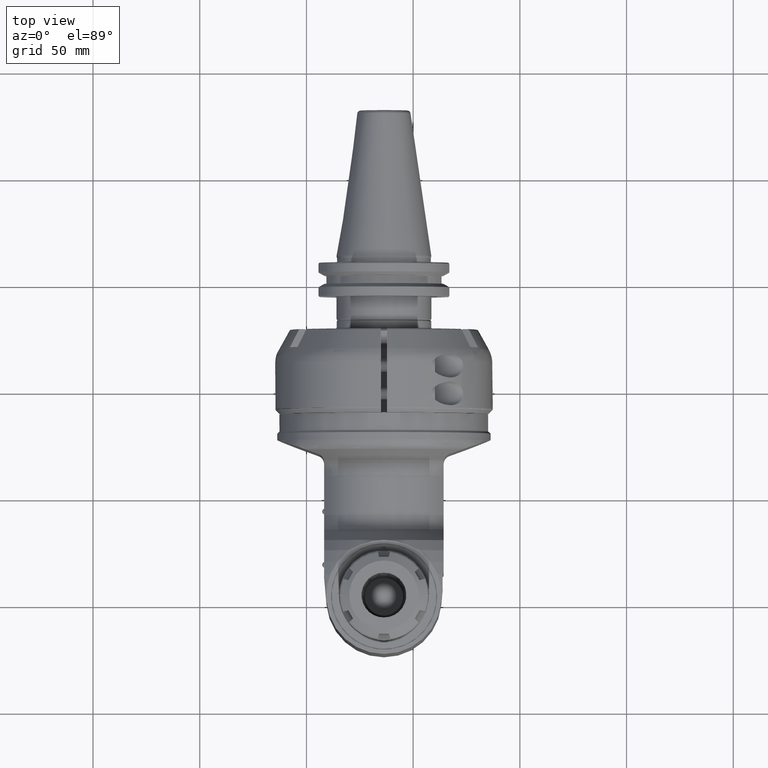
[diagram: clean part render]
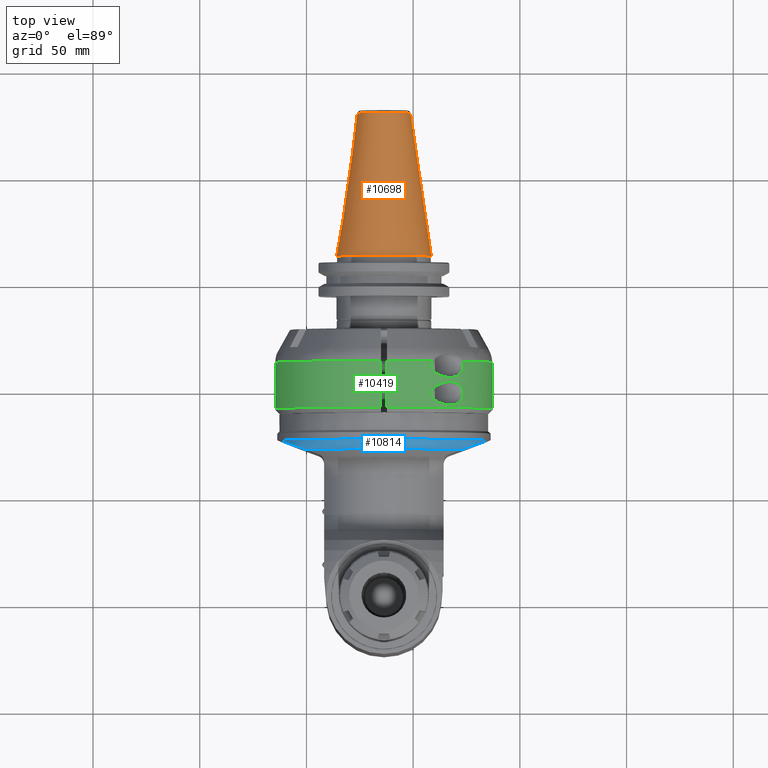
[diagram: same view with three faces highlighted in distinct colors, each labeled with its STEP entity id]
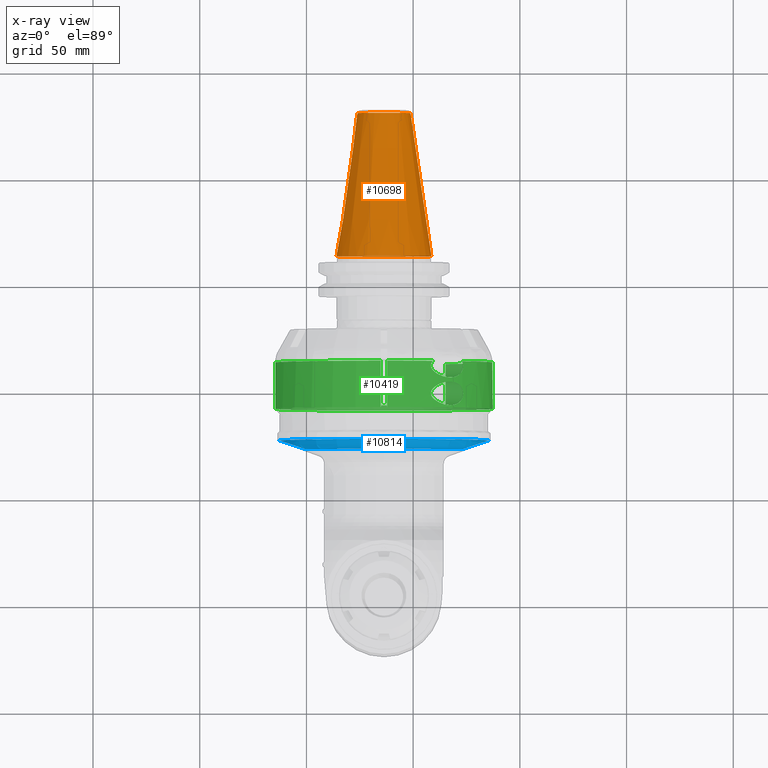
[diagram: x-ray of the same camera — body ghosted, the three highlighted faces saturated]
A machine part, top view with three faces highlighted in distinct colors.
The next image is the same camera in x-ray (body ghosted, the three faces saturated) — at least one of them is partly hidden behind the body in this view.
Their STEP definitions:

[orange] entity #10698 — the highlighted conical surface has half-angle 8.297 deg.
#421=CONICAL_SURFACE('',#11787,17.34203190906,0.144812411498922);
#927=LINE('',#20695,#1617);
#1617=VECTOR('',#14291,17.34203190906);
#2794=FACE_OUTER_BOUND('',#3492,.T.);
#3492=EDGE_LOOP('',(#8989,#8990,#8991,#8992,#8993));
#4175=CIRCLE('',#11786,22.225);
#4176=CIRCLE('',#11788,12.45906381812);
#4177=CIRCLE('',#11789,12.45906381812);
#5039=VERTEX_POINT('',#20690);
#5040=VERTEX_POINT('',#20694);
#5041=VERTEX_POINT('',#20696);
#6424=EDGE_CURVE('',#5039,#5039,#4175,.T.);
#6426=EDGE_CURVE('',#5039,#5040,#927,.T.);
#6427=EDGE_CURVE('',#5041,#5040,#4176,.T.);
#6428=EDGE_CURVE('',#5040,#5041,#4177,.T.);
#8989=ORIENTED_EDGE('',*,*,#6424,.F.);
#8990=ORIENTED_EDGE('',*,*,#6426,.T.);
#8991=ORIENTED_EDGE('',*,*,#6427,.F.);
#8992=ORIENTED_EDGE('',*,*,#6428,.F.);
#8993=ORIENTED_EDGE('',*,*,#6426,.F.);
#10698=ADVANCED_FACE('',(#2794),#421,.T.);
#11786=AXIS2_PLACEMENT_3D('',#20691,#14286,#14287);
#11787=AXIS2_PLACEMENT_3D('',#20693,#14289,#14290);
#11788=AXIS2_PLACEMENT_3D('',#20697,#14292,#14293);
#11789=AXIS2_PLACEMENT_3D('',#20698,#14294,#14295);
#14286=DIRECTION('center_axis',(0.,-1.,0.));
#14287=DIRECTION('ref_axis',(1.,0.,0.));
#14289=DIRECTION('center_axis',(0.,-1.,0.));
#14290=DIRECTION('ref_axis',(-1.,0.,0.));
#14291=DIRECTION('',(-0.144306807239621,0.98953299358046,-1.76724869581176E-17));
#14292=DIRECTION('center_axis',(0.,1.,0.));
#14293=DIRECTION('ref_axis',(1.,0.,0.));
#14294=DIRECTION('center_axis',(0.,1.,0.));
#14295=DIRECTION('ref_axis',(1.,0.,0.));
#20690=CARTESIAN_POINT('',(22.2249999999967,74.0000000000009,-2.72177751110459E-15));
#20691=CARTESIAN_POINT('Origin',(0.,74.,0.));
#20693=CARTESIAN_POINT('Origin',(0.,107.4832301054,0.));
#20694=CARTESIAN_POINT('',(12.45906381812,140.9664602109,0.));
#20695=CARTESIAN_POINT('',(17.34203190906,107.4832301054,2.12378638681416E-15));
#20696=CARTESIAN_POINT('',(-12.45906381812,140.9664602109,-1.52579526252333E-15));
#20697=CARTESIAN_POINT('Origin',(0.,140.9664602109,0.));
#20698=CARTESIAN_POINT('Origin',(0.,140.9664602109,0.));

[blue] entity #10814 — the highlighted toroidal blend (fillet) surface has major radius 45 mm and minor (blend) radius 5 mm.
#317=B_SPLINE_CURVE_WITH_KNOTS('',3,(#21783,#21784,#21785,#21786,#21787,
#21788,#21789,#21790,#21791,#21792,#21793,#21794,#21795,#21796,#21797,#21798,
#21799,#21800),.UNSPECIFIED.,.F.,.F.,(4,2,2,2,2,2,2,2,4),(-5.31609924693855,
-4.52945000907508,-4.22870179902035,-3.92795358896562,-3.6029203068998,
-3.27788702483398,-3.0117201079971,-2.94421427000487,-2.93536062682004),
 .UNSPECIFIED.);
#318=B_SPLINE_CURVE_WITH_KNOTS('',3,(#21808,#21809,#21810,#21811,#21812,
#21813,#21814,#21815,#21816,#21817,#21818,#21819,#21820,#21821,#21822,#21823,
#21824,#21825),.UNSPECIFIED.,.F.,.F.,(4,2,2,2,2,2,2,2,4),(-9.47110878514761,
-9.46225514204568,-9.39474930405345,-9.12858238721657,-8.80354910515075,
-8.47851582308493,-8.1777676130302,-7.87701940297547,-7.09037016510726),
 .UNSPECIFIED.);
#2910=FACE_OUTER_BOUND('',#3630,.T.);
#3630=EDGE_LOOP('',(#9569,#9570,#9571,#9572,#9573));
#4286=CIRCLE('',#12010,47.11309145933);
#4290=CIRCLE('',#12019,50.);
#4291=CIRCLE('',#12020,50.);
#5243=VERTEX_POINT('',#21780);
#5244=VERTEX_POINT('',#21782);
#5245=VERTEX_POINT('',#21803);
#5246=VERTEX_POINT('',#21807);
#5250=VERTEX_POINT('',#21853);
#6714=EDGE_CURVE('',#5243,#5244,#317,.T.);
#6716=EDGE_CURVE('',#5245,#5244,#4286,.T.);
#6718=EDGE_CURVE('',#5245,#5246,#318,.T.);
#6725=EDGE_CURVE('',#5243,#5250,#4290,.T.);
#6726=EDGE_CURVE('',#5250,#5246,#4291,.T.);
#9569=ORIENTED_EDGE('',*,*,#6714,.F.);
#9570=ORIENTED_EDGE('',*,*,#6725,.T.);
#9571=ORIENTED_EDGE('',*,*,#6726,.T.);
#9572=ORIENTED_EDGE('',*,*,#6718,.F.);
#9573=ORIENTED_EDGE('',*,*,#6716,.T.);
#10304=TOROIDAL_SURFACE('',#12037,45.,5.);
#10814=ADVANCED_FACE('',(#2910),#10304,.T.);
#12010=AXIS2_PLACEMENT_3D('',#21804,#14842,#14843);
#12019=AXIS2_PLACEMENT_3D('',#21855,#14861,#14862);
#12020=AXIS2_PLACEMENT_3D('',#21856,#14863,#14864);
#12037=AXIS2_PLACEMENT_3D('',#21886,#14902,#14903);
#14842=DIRECTION('center_axis',(-1.,0.,0.));
#14843=DIRECTION('ref_axis',(0.,-1.,0.));
#14861=DIRECTION('center_axis',(1.,0.,0.));
#14862=DIRECTION('ref_axis',(0.,-0.1872799096992,0.982306589320798));
#14863=DIRECTION('center_axis',(1.,0.,0.));
#14864=DIRECTION('ref_axis',(0.,-0.1872799096992,0.982306589320798));
#14902=DIRECTION('center_axis',(-1.,0.,0.));
#14903=DIRECTION('ref_axis',(0.,-1.,-5.10580126647657E-13));
#21780=CARTESIAN_POINT('',(16.31464863573,-9.363995485039,49.11532946603));
#21782=CARTESIAN_POINT('',(20.8461875025902,-29.5857914047178,36.6650287525181));
#21783=CARTESIAN_POINT('Ctrl Pts',(16.3146486357221,-9.36399548503858,49.1153294660249));
#21784=CARTESIAN_POINT('Ctrl Pts',(16.5089546643488,-12.1641130973839,48.5814780399092));
#21785=CARTESIAN_POINT('Ctrl Pts',(16.7970626489307,-14.8926841819771,47.7899078579059));
#21786=CARTESIAN_POINT('Ctrl Pts',(17.2779022721392,-18.2335890551422,46.4688118507617));
#21787=CARTESIAN_POINT('Ctrl Pts',(17.4371534747882,-19.2325943001654,46.0312727674626));
#21788=CARTESIAN_POINT('Ctrl Pts',(17.7890019232365,-21.1784209335023,45.0645771002807));
#21789=CARTESIAN_POINT('Ctrl Pts',(17.9817805222086,-22.1249619431991,44.5349222526509));
#21790=CARTESIAN_POINT('Ctrl Pts',(18.3765030725583,-23.8625497430824,43.4504309586156));
#21791=CARTESIAN_POINT('Ctrl Pts',(18.6191470504405,-24.8187856959593,42.7837721084178));
#21792=CARTESIAN_POINT('Ctrl Pts',(19.1522606848867,-26.6017151146837,41.3190544357736));
#21793=CARTESIAN_POINT('Ctrl Pts',(19.4425932033076,-27.4287590831444,40.5213723972789));
#21794=CARTESIAN_POINT('Ctrl Pts',(19.9758958164078,-28.6338312433967,39.05613551005));
#21795=CARTESIAN_POINT('Ctrl Pts',(20.2825600158396,-29.2079207962777,38.2135825467563));
#21796=CARTESIAN_POINT('Ctrl Pts',(20.6474740822835,-29.5221310747005,37.2109893891602));
#21797=CARTESIAN_POINT('Ctrl Pts',(20.738047373882,-29.5748920999617,36.9621413156877));
#21798=CARTESIAN_POINT('Ctrl Pts',(20.8250300566696,-29.5852601581142,36.7231583588454));
#21799=CARTESIAN_POINT('Ctrl Pts',(20.8354969163632,-29.585899084164,36.6944008981844));
#21800=CARTESIAN_POINT('Ctrl Pts',(20.8461875030403,-29.5857914029647,36.6650287526884));
#21803=CARTESIAN_POINT('',(20.846187502347,-29.585791404499,-36.665028753365));
#21804=CARTESIAN_POINT('Origin',(20.84618750067,0.,0.));
#21807=CARTESIAN_POINT('',(16.31464863572,-9.363995484987,-49.11532946603));
#21808=CARTESIAN_POINT('Ctrl Pts',(20.8461875027399,-29.5857914029678,-36.6650287535136));
#21809=CARTESIAN_POINT('Ctrl Pts',(20.8354969161672,-29.5858990841521,-36.694400898723));
#21810=CARTESIAN_POINT('Ctrl Pts',(20.8250300565751,-29.585260158103,-36.7231583591048));
#21811=CARTESIAN_POINT('Ctrl Pts',(20.738047373882,-29.5748920999617,-36.9621413156877));
#21812=CARTESIAN_POINT('Ctrl Pts',(20.6474740822835,-29.5221310747005,-37.2109893891602));
#21813=CARTESIAN_POINT('Ctrl Pts',(20.2825600158396,-29.2079207962777,-38.2135825467563));
#21814=CARTESIAN_POINT('Ctrl Pts',(19.9758958164078,-28.6338312433967,-39.05613551005));
#21815=CARTESIAN_POINT('Ctrl Pts',(19.4425932033076,-27.4287590831444,-40.5213723972789));
#21816=CARTESIAN_POINT('Ctrl Pts',(19.1522606848867,-26.6017151146837,-41.3190544357736));
#21817=CARTESIAN_POINT('Ctrl Pts',(18.6191470504405,-24.8187856959593,-42.7837721084178));
#21818=CARTESIAN_POINT('Ctrl Pts',(18.3765030725583,-23.8625497430824,-43.4504309586156));
#21819=CARTESIAN_POINT('Ctrl Pts',(17.9817805222086,-22.1249619431992,-44.5349222526509));
#21820=CARTESIAN_POINT('Ctrl Pts',(17.7890019232365,-21.1784209335023,-45.0645771002807));
#21821=CARTESIAN_POINT('Ctrl Pts',(17.4371534747882,-19.2325943001654,-46.0312727674626));
#21822=CARTESIAN_POINT('Ctrl Pts',(17.2779022721392,-18.2335890551422,-46.4688118507617));
#21823=CARTESIAN_POINT('Ctrl Pts',(16.7970626489286,-14.8926841819625,-47.7899078579117));
#21824=CARTESIAN_POINT('Ctrl Pts',(16.5089546643454,-12.164113097351,-48.5814780399186));
#21825=CARTESIAN_POINT('Ctrl Pts',(16.3146486357186,-9.36399548498797,-49.1153294660346));
#21853=CARTESIAN_POINT('',(16.3146486357221,-50.,6.12323399573677E-15));
#21855=CARTESIAN_POINT('Origin',(16.31464863572,0.,0.));
#21856=CARTESIAN_POINT('Origin',(16.31464863572,0.,0.));
#21886=CARTESIAN_POINT('Origin',(16.31464863572,0.,0.));

[green] entity #10419 — the highlighted cylindrical surface (partial cylindrical patch) has radius 51 mm, axis along (0, -1, 0).
#40=ELLIPSE('',#11263,144.249783362042,51.);
#41=ELLIPSE('',#11264,144.249783362042,51.);
#208=B_SPLINE_CURVE_WITH_KNOTS('',3,(#17712,#17713,#17714,#17715,#17716,
#17717),.UNSPECIFIED.,.F.,.F.,(4,2,4),(-0.220144328878827,-0.201175489980687,
0.),.UNSPECIFIED.);
#209=B_SPLINE_CURVE_WITH_KNOTS('',3,(#17718,#17719,#17720,#17721,#17722,
#17723,#17724,#17725,#17726,#17727,#17728,#17729,#17730,#17731,#17732,#17733,
#17734,#17735,#17736,#17737,#17738,#17739,#17740,#17741,#17742,#17743),
 .UNSPECIFIED.,.F.,.F.,(4,2,2,2,2,2,2,2,2,2,2,2,4),(0.,0.201175489980687,
0.402350979961374,0.726790310303929,1.05122964064648,1.44743687444551,1.84364410824453,
2.06341028648597,2.1732933756067,2.28317646472742,2.39305955384814,2.50294264296886,
2.52975105249028),.UNSPECIFIED.);
#210=B_SPLINE_CURVE_WITH_KNOTS('',3,(#17757,#17758,#17759,#17760,#17761,
#17762,#17763,#17764,#17765,#17766,#17767,#17768,#17769,#17770,#17771,#17772,
#17773,#17774,#17775,#17776,#17777,#17778,#17779),.UNSPECIFIED.,.F.,.F.,
(4,2,2,2,2,3,2,2,2,2,4),(-1.23194682408093,-0.835739590281912,-0.439532356482891,
-0.219766178241446,-0.109883089120723,0.,0.0949450193758139,0.189890038751628,
0.520032016318137,0.865269466584616,1.2105069168511),.UNSPECIFIED.);
#211=B_SPLINE_CURVE_WITH_KNOTS('',3,(#17780,#17781,#17782,#17783,#17784,
#17785,#17786,#17787,#17788,#17789,#17790,#17791,#17792,#17793,#17794,#17795,
#17796,#17797),.UNSPECIFIED.,.F.,.F.,(4,2,2,2,2,2,2,2,4),(1.2105069168511,
1.53494624719365,1.8593855775362,2.06056106751689,2.26173655749758,2.46291204747827,
2.66408753745895,2.98852686780151,3.31296619814406),.UNSPECIFIED.);
#615=LINE('',#17582,#1305);
#618=LINE('',#17701,#1308);
#619=LINE('',#17703,#1309);
#620=LINE('',#17710,#1310);
#621=LINE('',#17745,#1311);
#622=LINE('',#17754,#1312);
#1305=VECTOR('',#12905,18.52539489668);
#1308=VECTOR('',#12924,18.52539489668);
#1309=VECTOR('',#12925,0.6348591411298);
#1310=VECTOR('',#12932,0.6348591411298);
#1311=VECTOR('',#12933,21.74606856517);
#1312=VECTOR('',#12942,21.74606325158);
#1905=CYLINDRICAL_SURFACE('',#11257,51.);
#2053=FACE_BOUND('',#3177,.T.);
#2515=FACE_OUTER_BOUND('',#3176,.T.);
#3176=EDGE_LOOP('',(#7594,#7595,#7596,#7597,#7598,#7599,#7600,#7601,#7602,
#7603,#7604,#7605,#7606,#7607,#7608,#7609,#7610,#7611));
#3177=EDGE_LOOP('',(#7612,#7613));
#3931=CIRCLE('',#11255,51.);
#3932=CIRCLE('',#11256,51.);
#3933=CIRCLE('',#11258,51.);
#3934=CIRCLE('',#11259,51.);
#3935=CIRCLE('',#11260,51.);
#3936=CIRCLE('',#11261,51.);
#3937=CIRCLE('',#11262,51.);
#3938=CIRCLE('',#11265,51.);
#4613=VERTEX_POINT('',#17528);
#4614=VERTEX_POINT('',#17581);
#4619=VERTEX_POINT('',#17663);
#4620=VERTEX_POINT('',#17672);
#4621=VERTEX_POINT('',#17674);
#4622=VERTEX_POINT('',#17697);
#4623=VERTEX_POINT('',#17698);
#4624=VERTEX_POINT('',#17700);
#4625=VERTEX_POINT('',#17702);
#4626=VERTEX_POINT('',#17704);
#4627=VERTEX_POINT('',#17706);
#4628=VERTEX_POINT('',#17708);
#4629=VERTEX_POINT('',#17711);
#4630=VERTEX_POINT('',#17744);
#4631=VERTEX_POINT('',#17746);
#4632=VERTEX_POINT('',#17748);
#4633=VERTEX_POINT('',#17750);
#4634=VERTEX_POINT('',#17752);
#4635=VERTEX_POINT('',#17755);
#4636=VERTEX_POINT('',#17756);
#5750=EDGE_CURVE('',#4613,#4614,#615,.T.);
#5758=EDGE_CURVE('',#4619,#4620,#3931,.T.);
#5760=EDGE_CURVE('',#4621,#4613,#3932,.T.);
#5761=EDGE_CURVE('',#4622,#4623,#3933,.T.);
#5762=EDGE_CURVE('',#4622,#4624,#618,.T.);
#5763=EDGE_CURVE('',#4624,#4625,#619,.T.);
#5764=EDGE_CURVE('',#4626,#4625,#3934,.T.);
#5765=EDGE_CURVE('',#4627,#4626,#3935,.T.);
#5766=EDGE_CURVE('',#4628,#4627,#3936,.T.);
#5767=EDGE_CURVE('',#4628,#4614,#620,.T.);
#5768=EDGE_CURVE('',#4621,#4629,#208,.T.);
#5769=EDGE_CURVE('',#4629,#4620,#209,.T.);
#5770=EDGE_CURVE('',#4619,#4630,#621,.T.);
#5771=EDGE_CURVE('',#4631,#4630,#3937,.T.);
#5772=EDGE_CURVE('',#4632,#4631,#40,.T.);
#5773=EDGE_CURVE('',#4633,#4632,#41,.T.);
#5774=EDGE_CURVE('',#4634,#4633,#3938,.T.);
#5775=EDGE_CURVE('',#4634,#4623,#622,.T.);
#5776=EDGE_CURVE('',#4635,#4636,#210,.T.);
#5777=EDGE_CURVE('',#4636,#4635,#211,.T.);
#7594=ORIENTED_EDGE('',*,*,#5761,.F.);
#7595=ORIENTED_EDGE('',*,*,#5762,.T.);
#7596=ORIENTED_EDGE('',*,*,#5763,.T.);
#7597=ORIENTED_EDGE('',*,*,#5764,.F.);
#7598=ORIENTED_EDGE('',*,*,#5765,.F.);
#7599=ORIENTED_EDGE('',*,*,#5766,.F.);
#7600=ORIENTED_EDGE('',*,*,#5767,.T.);
#7601=ORIENTED_EDGE('',*,*,#5750,.F.);
#7602=ORIENTED_EDGE('',*,*,#5760,.F.);
#7603=ORIENTED_EDGE('',*,*,#5768,.T.);
#7604=ORIENTED_EDGE('',*,*,#5769,.T.);
#7605=ORIENTED_EDGE('',*,*,#5758,.F.);
#7606=ORIENTED_EDGE('',*,*,#5770,.T.);
#7607=ORIENTED_EDGE('',*,*,#5771,.F.);
#7608=ORIENTED_EDGE('',*,*,#5772,.F.);
#7609=ORIENTED_EDGE('',*,*,#5773,.F.);
#7610=ORIENTED_EDGE('',*,*,#5774,.F.);
#7611=ORIENTED_EDGE('',*,*,#5775,.T.);
#7612=ORIENTED_EDGE('',*,*,#5776,.T.);
#7613=ORIENTED_EDGE('',*,*,#5777,.T.);
#10419=ADVANCED_FACE('',(#2515,#2053),#1905,.T.);
#11255=AXIS2_PLACEMENT_3D('',#17673,#12916,#12917);
#11256=AXIS2_PLACEMENT_3D('',#17695,#12918,#12919);
#11257=AXIS2_PLACEMENT_3D('',#17696,#12920,#12921);
#11258=AXIS2_PLACEMENT_3D('',#17699,#12922,#12923);
#11259=AXIS2_PLACEMENT_3D('',#17705,#12926,#12927);
#11260=AXIS2_PLACEMENT_3D('',#17707,#12928,#12929);
#11261=AXIS2_PLACEMENT_3D('',#17709,#12930,#12931);
#11262=AXIS2_PLACEMENT_3D('',#17747,#12934,#12935);
#11263=AXIS2_PLACEMENT_3D('',#17749,#12936,#12937);
#11264=AXIS2_PLACEMENT_3D('',#17751,#12938,#12939);
#11265=AXIS2_PLACEMENT_3D('',#17753,#12940,#12941);
#12905=DIRECTION('',(3.336890703594E-14,-1.,2.301303933513E-14));
#12916=DIRECTION('center_axis',(0.,1.,0.));
#12917=DIRECTION('ref_axis',(0.0294117647058804,0.,0.999567380468613));
#12918=DIRECTION('center_axis',(0.,1.,0.));
#12919=DIRECTION('ref_axis',(0.719066469693323,0.,0.694941301235422));
#12920=DIRECTION('center_axis',(0.,-1.,0.));
#12921=DIRECTION('ref_axis',(1.4663902280623E-10,0.,-1.));
#12922=DIRECTION('center_axis',(0.,1.,0.));
#12923=DIRECTION('ref_axis',(-0.567273574176089,0.,-0.823529411764684));
#12924=DIRECTION('',(-3.394423301932E-14,-1.,2.301303933513E-14));
#12925=DIRECTION('',(0.,-1.,2.238426415332E-14));
#12926=DIRECTION('center_axis',(0.,1.,0.));
#12927=DIRECTION('ref_axis',(-0.54901960784313,0.,-0.835809470037146));
#12928=DIRECTION('center_axis',(0.,1.,0.));
#12929=DIRECTION('ref_axis',(0.54901960784313,0.,-0.835809470037146));
#12930=DIRECTION('center_axis',(0.,1.,0.));
#12931=DIRECTION('ref_axis',(0.567273574176089,0.,-0.823529411764684));
#12932=DIRECTION('',(6.155672642164E-14,1.,1.119213207666E-14));
#12933=DIRECTION('',(1.273469652131E-9,-1.,-3.747115976057E-11));
#12934=DIRECTION('center_axis',(0.,-1.,0.));
#12935=DIRECTION('ref_axis',(0.999826388474475,0.,0.0186331132687895));
#12936=DIRECTION('center_axis',(0.612372435695813,-0.353553390593307,-0.707106781186515));
#12937=DIRECTION('ref_axis',(-0.23145502494317,-0.935414346693472,0.267261241912441));
#12938=DIRECTION('center_axis',(0.612372435695813,-0.353553390593307,0.707106781186515));
#12939=DIRECTION('ref_axis',(0.23145502494317,0.935414346693472,0.267261241912441));
#12940=DIRECTION('center_axis',(0.,-1.,0.));
#12941=DIRECTION('ref_axis',(0.,0.,-1.));
#12942=DIRECTION('',(4.970251645951E-10,1.,1.462479987387E-11));
#17528=CARTESIAN_POINT('',(28.93095228298,24.16025403781,-42.));
#17581=CARTESIAN_POINT('',(28.93095228298,5.63485914113,-42.));
#17582=CARTESIAN_POINT('',(28.93095228298,24.16025403781,-42.));
#17663=CARTESIAN_POINT('',(1.49999997309681,24.16025403784,50.9779364046901));
#17672=CARTESIAN_POINT('',(22.92311419183,24.16025403784,45.55799420242));
#17673=CARTESIAN_POINT('Origin',(0.,24.16025403784,0.));
#17674=CARTESIAN_POINT('',(36.67238995435,24.1602540379,35.44200636301));
#17695=CARTESIAN_POINT('Origin',(0.,24.16025403784,0.));
#17696=CARTESIAN_POINT('Origin',(0.,31.,0.));
#17697=CARTESIAN_POINT('',(-28.93095228298,24.16025403781,-42.));
#17698=CARTESIAN_POINT('',(-1.49999998023586,24.1602540482335,50.9779364044794));
#17699=CARTESIAN_POINT('Origin',(0.,24.16025403784,0.));
#17700=CARTESIAN_POINT('',(-28.93095228298,5.63485914113,-42.));
#17701=CARTESIAN_POINT('',(-28.93095228298,24.16025403781,-42.));
#17702=CARTESIAN_POINT('',(-28.93095228298,5.,-42.));
#17703=CARTESIAN_POINT('',(-28.93095228298,5.63485914113,-42.));
#17704=CARTESIAN_POINT('',(-28.,5.,-42.62628297189));
#17705=CARTESIAN_POINT('Origin',(0.,5.,0.));
#17706=CARTESIAN_POINT('',(28.,5.,-42.62628297189));
#17707=CARTESIAN_POINT('Origin',(0.,5.,0.));
#17708=CARTESIAN_POINT('',(28.93095228298,5.,-42.));
#17709=CARTESIAN_POINT('Origin',(0.,5.,0.));
#17710=CARTESIAN_POINT('',(28.93095228298,5.,-42.));
#17711=CARTESIAN_POINT('',(37.094473715245,22.,35.0000002827));
#17712=CARTESIAN_POINT('Ctrl Pts',(36.6723899543635,24.1602540379089,35.4420063630023));
#17713=CARTESIAN_POINT('Ctrl Pts',(36.6960098703003,24.1030307589439,35.4175664721268));
#17714=CARTESIAN_POINT('Ctrl Pts',(36.7187524665202,24.0451285760537,35.3939854762379));
#17715=CARTESIAN_POINT('Ctrl Pts',(36.9720249281091,23.365962882206,35.1309085087689));
#17716=CARTESIAN_POINT('Ctrl Pts',(37.094473715245,22.6705849666023,35.0000002827));
#17717=CARTESIAN_POINT('Ctrl Pts',(37.094473715245,22.,35.0000002827));
#17718=CARTESIAN_POINT('Ctrl Pts',(37.094473715245,22.,35.0000002827));
#17719=CARTESIAN_POINT('Ctrl Pts',(37.094473715245,21.3294150333977,35.0000002827));
#17720=CARTESIAN_POINT('Ctrl Pts',(36.9720249281091,20.634037117794,35.1309085087689));
#17721=CARTESIAN_POINT('Ctrl Pts',(36.509126684777,19.3927469884163,35.611726144206));
#17722=CARTESIAN_POINT('Ctrl Pts',(36.1687494919773,18.8460087579151,35.9595700839234));
#17723=CARTESIAN_POINT('Ctrl Pts',(35.2033968586434,17.735791859391,36.9109847334653));
#17724=CARTESIAN_POINT('Ctrl Pts',(34.4409934800641,17.2408985110096,37.6305186458188));
#17725=CARTESIAN_POINT('Ctrl Pts',(32.7670730175023,16.6228361137413,39.0967633186736));
#17726=CARTESIAN_POINT('Ctrl Pts',(31.8547771083538,16.5,39.8427250661917));
#17727=CARTESIAN_POINT('Ctrl Pts',(29.9471832487812,16.5,41.3026686740521));
#17728=CARTESIAN_POINT('Ctrl Pts',(28.778013547493,16.6813594560049,42.1275628033903));
#17729=CARTESIAN_POINT('Ctrl Pts',(26.456979520871,17.3971650946717,43.6226298537565));
#17730=CARTESIAN_POINT('Ctrl Pts',(25.3037695427295,17.923954492565,44.2943690865695));
#17731=CARTESIAN_POINT('Ctrl Pts',(23.7624895598246,18.9924338611569,45.1302050030023));
#17732=CARTESIAN_POINT('Ctrl Pts',(23.1928172782629,19.474810450432,45.4238805293447));
#17733=CARTESIAN_POINT('Ctrl Pts',(22.5411184273514,20.3289480905375,45.7488459255632));
#17734=CARTESIAN_POINT('Ctrl Pts',(22.3578474169696,20.6350884897769,45.8382767855729));
#17735=CARTESIAN_POINT('Ctrl Pts',(22.0986788135919,21.2875037271628,45.9637780827712));
#17736=CARTESIAN_POINT('Ctrl Pts',(22.0227149550549,21.6337230362643,46.0000002827));
#17737=CARTESIAN_POINT('Ctrl Pts',(22.0227149550549,22.3662769637357,46.0000002827));
#17738=CARTESIAN_POINT('Ctrl Pts',(22.0986788135919,22.7124962728372,45.9637780827712));
#17739=CARTESIAN_POINT('Ctrl Pts',(22.3578474169696,23.3649115102231,45.8382767855729));
#17740=CARTESIAN_POINT('Ctrl Pts',(22.5411184273514,23.6710519094625,45.7488459255632));
#17741=CARTESIAN_POINT('Ctrl Pts',(22.8113501597235,24.0252263780027,45.6140966286168));
#17742=CARTESIAN_POINT('Ctrl Pts',(22.866366168842,24.0933991389679,45.5865477292858));
#17743=CARTESIAN_POINT('Ctrl Pts',(22.9231141918306,24.1602540378421,45.5579942024262));
#17744=CARTESIAN_POINT('',(1.49999998660699,2.41421355535176,50.9779364042926));
#17745=CARTESIAN_POINT('',(1.499999945521,24.16027520978,50.9779364055));
#17746=CARTESIAN_POINT('',(50.9911458122,2.414213562364,0.9502887767138));
#17747=CARTESIAN_POINT('Origin',(0.,2.414213562373,0.));
#17748=CARTESIAN_POINT('',(51.,4.330127018922,0.));
#17749=CARTESIAN_POINT('Origin',(0.,-84.0044641670873,0.));
#17750=CARTESIAN_POINT('',(50.9911458122,2.414213562368,-0.9502887767115));
#17751=CARTESIAN_POINT('Origin',(0.,-84.0044641670895,0.));
#17752=CARTESIAN_POINT('',(-1.49999998564002,2.41421355484646,50.9779364043204));
#17753=CARTESIAN_POINT('Origin',(0.,2.414213562373,0.));
#17754=CARTESIAN_POINT('',(-1.49999997128,2.414206146768,50.97793640474));
#17755=CARTESIAN_POINT('',(30.99596711028,3.5,40.5000002827));
#17756=CARTESIAN_POINT('',(30.9959671102758,14.5,40.5000002827));
#17757=CARTESIAN_POINT('Ctrl Pts',(30.9959671102758,3.5,40.5000002827));
#17758=CARTESIAN_POINT('Ctrl Pts',(29.9471832487812,3.5,41.3026686740522));
#17759=CARTESIAN_POINT('Ctrl Pts',(28.778013547493,3.68135945600489,42.1275628033903));
#17760=CARTESIAN_POINT('Ctrl Pts',(26.456979520871,4.39716509467172,43.6226298537565));
#17761=CARTESIAN_POINT('Ctrl Pts',(25.3037695427295,4.92395449256504,44.2943690865695));
#17762=CARTESIAN_POINT('Ctrl Pts',(23.7624895598246,5.99243386115686,45.1302050030023));
#17763=CARTESIAN_POINT('Ctrl Pts',(23.1928172782629,6.47481045043199,45.4238805293447));
#17764=CARTESIAN_POINT('Ctrl Pts',(22.5411184273514,7.32894809053752,45.7488459255632));
#17765=CARTESIAN_POINT('Ctrl Pts',(22.3578474169696,7.63508848977688,45.8382767855729));
#17766=CARTESIAN_POINT('Ctrl Pts',(22.0986788135919,8.28750372716278,45.9637780827712));
#17767=CARTESIAN_POINT('Ctrl Pts',(22.0227149550549,8.63372303626426,46.0000002827));
#17768=CARTESIAN_POINT('Ctrl Pts',(22.0227149550549,9.,46.0000002827));
#17769=CARTESIAN_POINT('Ctrl Pts',(22.0227149550549,9.31648339791938,46.0000002827));
#17770=CARTESIAN_POINT('Ctrl Pts',(22.0845156868871,9.6517064771444,45.9705414133334));
#17771=CARTESIAN_POINT('Ctrl Pts',(22.3158805898878,10.2791236415987,45.8586740383155));
#17772=CARTESIAN_POINT('Ctrl Pts',(22.483313327636,10.5722426936705,45.7770585076701));
#17773=CARTESIAN_POINT('Ctrl Pts',(23.2699641340394,11.6843353101904,45.3869345691662));
#17774=CARTESIAN_POINT('Ctrl Pts',(24.2526245503324,12.4029598465647,44.8752150291874));
#17775=CARTESIAN_POINT('Ctrl Pts',(26.0105214218574,13.3974425277095,43.8807323480425));
#17776=CARTESIAN_POINT('Ctrl Pts',(27.0277734960808,13.8085612622241,43.2664368855585));
#17777=CARTESIAN_POINT('Ctrl Pts',(29.06345429342,14.3611168342614,41.9261341817965));
#17778=CARTESIAN_POINT('Ctrl Pts',(30.0821032649561,14.5,41.1994099986278));
#17779=CARTESIAN_POINT('Ctrl Pts',(30.9959671102758,14.5,40.5000002827));
#17780=CARTESIAN_POINT('Ctrl Pts',(30.9959671102758,14.5,40.5000002827));
#17781=CARTESIAN_POINT('Ctrl Pts',(31.8547771083537,14.5,39.8427250661917));
#17782=CARTESIAN_POINT('Ctrl Pts',(32.7670730175023,14.3771638862587,39.0967633186736));
#17783=CARTESIAN_POINT('Ctrl Pts',(34.4409934800641,13.7591014889904,37.6305186458188));
#17784=CARTESIAN_POINT('Ctrl Pts',(35.2033968586434,13.264208140609,36.9109847334653));
#17785=CARTESIAN_POINT('Ctrl Pts',(36.1687494919773,12.1539912420849,35.9595700839234));
#17786=CARTESIAN_POINT('Ctrl Pts',(36.509126684777,11.6072530115837,35.611726144206));
#17787=CARTESIAN_POINT('Ctrl Pts',(36.9720249281091,10.365962882206,35.1309085087689));
#17788=CARTESIAN_POINT('Ctrl Pts',(37.094473715245,9.67058496660229,35.0000002827));
#17789=CARTESIAN_POINT('Ctrl Pts',(37.094473715245,8.32941503339771,35.0000002827));
#17790=CARTESIAN_POINT('Ctrl Pts',(36.9720249281091,7.63403711779401,35.1309085087689));
#17791=CARTESIAN_POINT('Ctrl Pts',(36.509126684777,6.3927469884163,35.611726144206));
#17792=CARTESIAN_POINT('Ctrl Pts',(36.1687494919773,5.84600875791506,35.9595700839234));
#17793=CARTESIAN_POINT('Ctrl Pts',(35.2033968586434,4.73579185939096,36.9109847334653));
#17794=CARTESIAN_POINT('Ctrl Pts',(34.4409934800641,4.2408985110096,37.6305186458188));
#17795=CARTESIAN_POINT('Ctrl Pts',(32.7670730175023,3.6228361137413,39.0967633186736));
#17796=CARTESIAN_POINT('Ctrl Pts',(31.8547771083537,3.5,39.8427250661917));
#17797=CARTESIAN_POINT('Ctrl Pts',(30.9959671102758,3.5,40.5000002827));